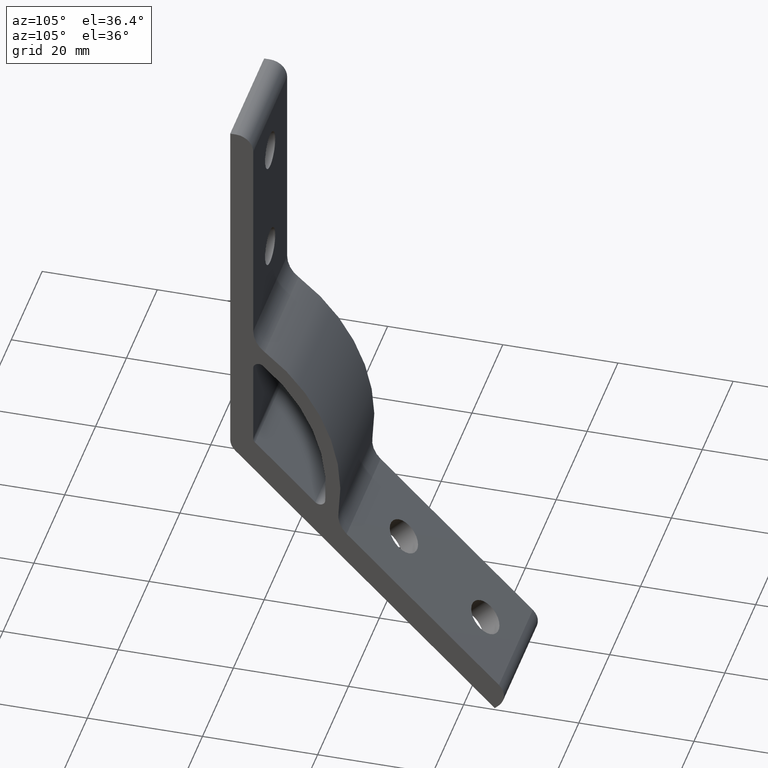
[diagram: clean part render]
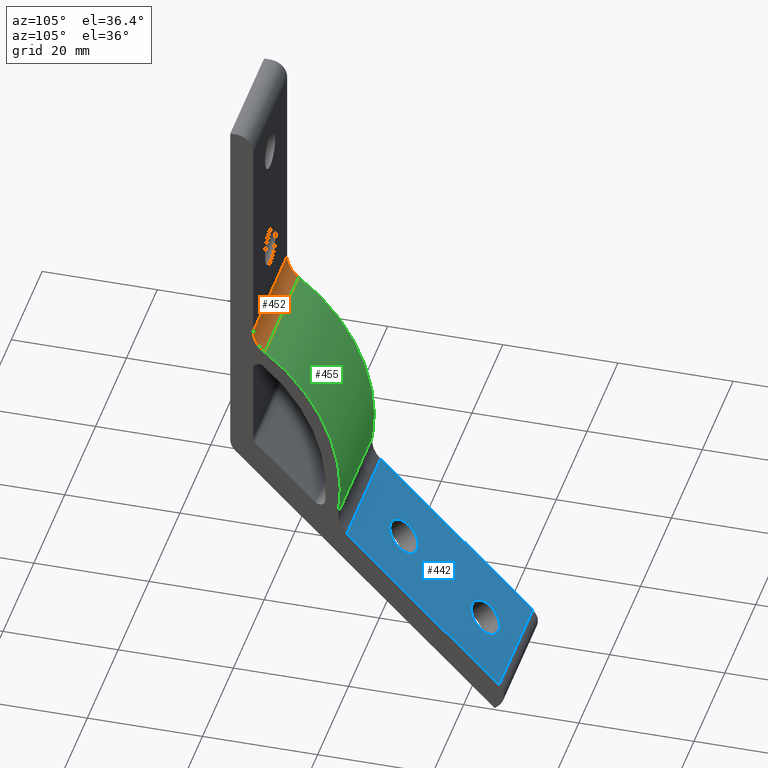
[diagram: same view with three faces highlighted in distinct colors, each labeled with its STEP entity id]
A machine part, auxiliary view with three faces highlighted in distinct colors.
Their STEP definitions:

[orange] entity #452 — the highlighted cylindrical surface (edge-blend (fillet) strip) has radius 5 mm, axis along (1, 0, 0).
#50=FACE_OUTER_BOUND('',#83,.T.);
#83=EDGE_LOOP('',(#357,#358,#359,#360));
#120=LINE('',#747,#154);
#121=LINE('',#750,#155);
#154=VECTOR('',#606,22.);
#155=VECTOR('',#609,22.);
#175=CIRCLE('',#476,5.);
#190=CIRCLE('',#500,5.);
#211=VERTEX_POINT('',#692);
#212=VERTEX_POINT('',#694);
#231=VERTEX_POINT('',#746);
#232=VERTEX_POINT('',#748);
#257=EDGE_CURVE('',#212,#211,#175,.T.);
#281=EDGE_CURVE('',#211,#231,#120,.T.);
#282=EDGE_CURVE('',#231,#232,#190,.T.);
#283=EDGE_CURVE('',#232,#212,#121,.T.);
#357=ORIENTED_EDGE('',*,*,#257,.T.);
#358=ORIENTED_EDGE('',*,*,#281,.T.);
#359=ORIENTED_EDGE('',*,*,#282,.T.);
#360=ORIENTED_EDGE('',*,*,#283,.T.);
#434=CYLINDRICAL_SURFACE('',#499,5.);
#452=ADVANCED_FACE('',(#50),#434,.F.);
#476=AXIS2_PLACEMENT_3D('',#695,#549,#550);
#499=AXIS2_PLACEMENT_3D('',#745,#604,#605);
#500=AXIS2_PLACEMENT_3D('',#749,#607,#608);
#549=DIRECTION('center_axis',(-1.,0.,0.));
#550=DIRECTION('ref_axis',(0.,-0.894925676209796,-0.446215232887045));
#604=DIRECTION('center_axis',(1.,0.,0.));
#605=DIRECTION('ref_axis',(0.,-0.894925676209796,-0.446215232887045));
#606=DIRECTION('',(1.,0.,0.));
#607=DIRECTION('center_axis',(1.,0.,0.));
#608=DIRECTION('ref_axis',(0.,-0.894925676209796,-0.446215232887045));
#609=DIRECTION('',(-1.,0.,0.));
#692=CARTESIAN_POINT('',(0.,4.00000000000001,-40.3951868083209));
#694=CARTESIAN_POINT('',(0.,5.99108034060439,-44.3884814985864));
#695=CARTESIAN_POINT('Origin',(0.,9.00000000000001,-40.3951868083209));
#745=CARTESIAN_POINT('Origin',(0.,9.00000000000001,-40.3951868083209));
#746=CARTESIAN_POINT('',(22.,4.00000000000001,-40.3951868083209));
#747=CARTESIAN_POINT('',(0.,4.00000000000001,-40.3951868083209));
#748=CARTESIAN_POINT('',(22.,5.99108034060439,-44.3884814985864));
#749=CARTESIAN_POINT('Origin',(22.,9.00000000000001,-40.3951868083209));
#750=CARTESIAN_POINT('',(0.,5.99108034060439,-44.3884814985864));

[blue] entity #442 — the highlighted planar face has unit normal (0, 0.7071, 0.7071).
#15=FACE_BOUND('',#65,.T.);
#16=FACE_BOUND('',#66,.T.);
#29=PLANE('',#470);
#40=FACE_OUTER_BOUND('',#64,.T.);
#64=EDGE_LOOP('',(#307,#308,#309,#310));
#65=EDGE_LOOP('',(#311));
#66=EDGE_LOOP('',(#312));
#102=LINE('',#668,#136);
#103=LINE('',#671,#137);
#104=LINE('',#673,#138);
#105=LINE('',#674,#139);
#136=VECTOR('',#528,22.);
#137=VECTOR('',#531,37.3951868083209);
#138=VECTOR('',#532,22.);
#139=VECTOR('',#533,37.3951868083209);
#171=CIRCLE('',#471,3.25);
#172=CIRCLE('',#472,3.25);
#197=VERTEX_POINT('',#661);
#200=VERTEX_POINT('',#666);
#201=VERTEX_POINT('',#670);
#202=VERTEX_POINT('',#672);
#203=VERTEX_POINT('',#675);
#204=VERTEX_POINT('',#677);
#244=EDGE_CURVE('',#200,#197,#102,.T.);
#245=EDGE_CURVE('',#200,#201,#103,.T.);
#246=EDGE_CURVE('',#202,#201,#104,.T.);
#247=EDGE_CURVE('',#197,#202,#105,.T.);
#248=EDGE_CURVE('',#203,#203,#171,.T.);
#249=EDGE_CURVE('',#204,#204,#172,.T.);
#307=ORIENTED_EDGE('',*,*,#244,.F.);
#308=ORIENTED_EDGE('',*,*,#245,.T.);
#309=ORIENTED_EDGE('',*,*,#246,.F.);
#310=ORIENTED_EDGE('',*,*,#247,.F.);
#311=ORIENTED_EDGE('',*,*,#248,.T.);
#312=ORIENTED_EDGE('',*,*,#249,.T.);
#442=ADVANCED_FACE('',(#40,#15,#16),#29,.T.);
#470=AXIS2_PLACEMENT_3D('',#669,#529,#530);
#471=AXIS2_PLACEMENT_3D('',#676,#534,#535);
#472=AXIS2_PLACEMENT_3D('',#678,#536,#537);
#528=DIRECTION('',(1.,0.,0.));
#529=DIRECTION('center_axis',(0.,0.707106781186547,0.707106781186548));
#530=DIRECTION('ref_axis',(0.,-0.707106781186548,0.707106781186548));
#531=DIRECTION('',(0.,-0.707106781186548,0.707106781186547));
#532=DIRECTION('',(-1.,0.,0.));
#533=DIRECTION('',(0.,-0.707106781186548,0.707106781186547));
#534=DIRECTION('center_axis',(0.,-0.707106781186547,-0.707106781186548));
#535=DIRECTION('ref_axis',(1.,0.,0.));
#536=DIRECTION('center_axis',(0.,-0.707106781186547,-0.707106781186548));
#537=DIRECTION('ref_axis',(1.,0.,0.));
#661=CARTESIAN_POINT('',(22.,46.6690475583121,-106.01219330882));
#666=CARTESIAN_POINT('',(0.,46.6690475583121,-106.01219330882));
#668=CARTESIAN_POINT('',(0.,46.6690475583121,-106.01219330882));
#669=CARTESIAN_POINT('Origin',(0.,48.7903679018718,-108.133513652379));
#670=CARTESIAN_POINT('',(0.,20.2266573824107,-79.5698031329183));
#671=CARTESIAN_POINT('',(0.,48.7903679018718,-108.133513652379));
#672=CARTESIAN_POINT('',(22.,20.2266573824107,-79.5698031329183));
#673=CARTESIAN_POINT('',(0.,20.2266573824107,-79.5698031329183));
#674=CARTESIAN_POINT('',(22.,48.7903679018718,-108.133513652379));
#675=CARTESIAN_POINT('',(14.25,41.365746699413,-100.708892449921));
#676=CARTESIAN_POINT('Origin',(11.,41.3657466994131,-100.708892449921));
#677=CARTESIAN_POINT('',(14.25,27.2236110756821,-86.5667568261897));
#678=CARTESIAN_POINT('Origin',(11.,27.2236110756821,-86.5667568261897));

[green] entity #455 — the highlighted cylindrical surface (partial cylindrical patch) has radius 33 mm, axis along (1, 0, 0).
#53=FACE_OUTER_BOUND('',#88,.T.);
#88=EDGE_LOOP('',(#371,#372,#373,#374));
#121=LINE('',#750,#155);
#123=LINE('',#755,#157);
#155=VECTOR('',#609,22.);
#157=VECTOR('',#615,22.);
#176=CIRCLE('',#477,33.);
#192=CIRCLE('',#505,33.);
#212=VERTEX_POINT('',#694);
#213=VERTEX_POINT('',#696);
#232=VERTEX_POINT('',#748);
#233=VERTEX_POINT('',#754);
#258=EDGE_CURVE('',#213,#212,#176,.T.);
#283=EDGE_CURVE('',#232,#212,#121,.T.);
#285=EDGE_CURVE('',#213,#233,#123,.T.);
#287=EDGE_CURVE('',#233,#232,#192,.T.);
#371=ORIENTED_EDGE('',*,*,#283,.F.);
#372=ORIENTED_EDGE('',*,*,#287,.F.);
#373=ORIENTED_EDGE('',*,*,#285,.F.);
#374=ORIENTED_EDGE('',*,*,#258,.T.);
#436=CYLINDRICAL_SURFACE('',#504,33.);
#455=ADVANCED_FACE('',(#53),#436,.T.);
#477=AXIS2_PLACEMENT_3D('',#697,#551,#552);
#504=AXIS2_PLACEMENT_3D('',#757,#618,#619);
#505=AXIS2_PLACEMENT_3D('',#758,#620,#621);
#551=DIRECTION('center_axis',(1.,0.,0.));
#552=DIRECTION('ref_axis',(0.,0.977350476432027,-0.211627139606643));
#609=DIRECTION('',(-1.,0.,0.));
#615=DIRECTION('',(1.,0.,0.));
#618=DIRECTION('center_axis',(1.,0.,0.));
#619=DIRECTION('ref_axis',(0.,0.977350476432027,-0.211627139606643));
#620=DIRECTION('center_axis',(1.,0.,0.));
#621=DIRECTION('ref_axis',(0.,0.977350476432027,-0.211627139606643));
#694=CARTESIAN_POINT('',(0.,5.99108034060439,-44.3884814985864));
#696=CARTESIAN_POINT('',(0.,18.8108780383763,-75.3382109674268));
#697=CARTESIAN_POINT('Origin',(0.,-13.8677894114067,-70.7442264543386));
#748=CARTESIAN_POINT('',(22.,5.99108034060439,-44.3884814985864));
#750=CARTESIAN_POINT('',(0.,5.99108034060439,-44.3884814985864));
#754=CARTESIAN_POINT('',(22.,18.8108780383763,-75.3382109674268));
#755=CARTESIAN_POINT('',(0.,18.8108780383763,-75.3382109674268));
#757=CARTESIAN_POINT('Origin',(0.,-13.8677894114067,-70.7442264543386));
#758=CARTESIAN_POINT('Origin',(22.,-13.8677894114067,-70.7442264543386));